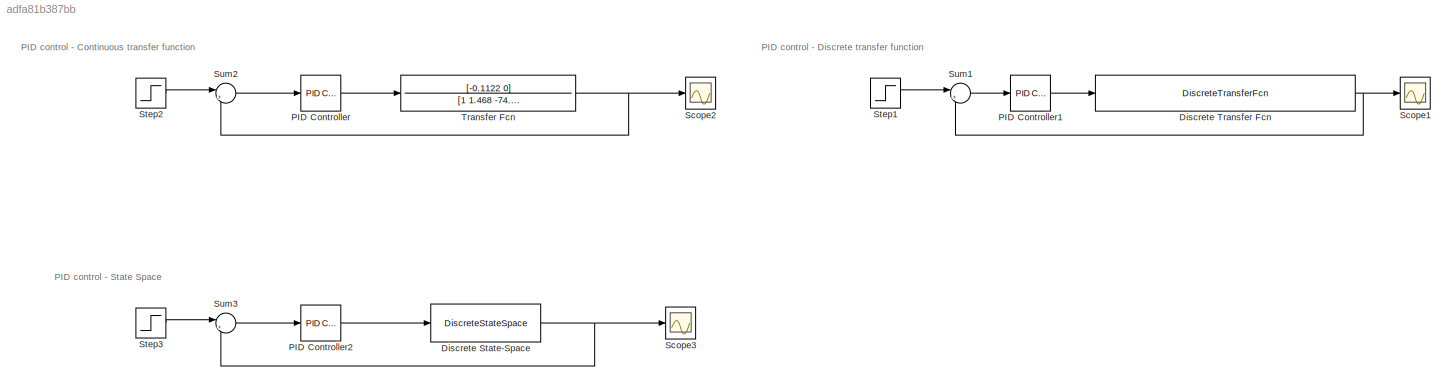
MODEL slx_adfa81b387bb
KIND model
CONFIG AbsTol = auto
CONFIG EnableMultiTasking = off
CONFIG FixedStep = auto
CONFIG MaxStep = auto
CONFIG MinStep = auto
CONFIG RelTol = 1e-3
CONFIG SampleTimeConstraint = Unconstrained
CONFIG SolverName = VariableStepAuto
CONFIG StartTime = 0.0
CONFIG StopTime = 5
BLOCK [DiscreteStateSpace] Discrete State-Space
  A = [0.9891 0.7415 0.6142; 0.009939 1.004 0.003077; 0.00004979 0.01001 1]
  B = [0.009939; 0.00004979; 0.0000001661]
  C = [0 -0.1122 0]
  Commented = on
  D = [0]
  SampleTime = 0.01
BLOCK [DiscreteTransferFcn] Discrete Transfer Fcn
  Denominator = [1 -2.993 2.978 -0.9854]
  InputPortMap = u0
  Numerator = [-0.000005586 0.00000002727 0.000005559]
  SampleTime = 0.01
BLOCK [Reference] PID Controller  REF=slpidlib/PID Controller
  Commented = on
  SourceBlock = slpidlib/PID Controller
  SourceType = PID 1dof
BLOCK [Reference] PID Controller1  REF=slpidlib/PID Controller
  SourceBlock = slpidlib/PID Controller
  SourceType = PID 1dof
BLOCK [Reference] PID Controller2  REF=slpidlib/PID Controller
  Commented = on
  SourceBlock = slpidlib/PID Controller
  SourceType = PID 1dof
BLOCK [Scope] Scope1
  Floating = off
  NumInputPorts = 1
  ScopeSpecificationString = Simulink.scopes.TimeScopeBlockCfg('CurrentConfiguration', extmgr.ConfigurationSet(extmgr.Configuration('Core','General UI',true),extmgr.Configuration('Core','Source UI',true),extmgr.Configuration('Sources','WiredSimulink',true),extmgr.Configuration('Visuals','Time Domain',true,'SerializedDisplays',{struct('MinYLimReal','-2.1148','MaxYLimReal','3.43909','YLabelReal','','MinYLimMag','0.00000','MaxYL...<+1529ch>
BLOCK [Scope] Scope2
  Commented = on
  Floating = off
  NumInputPorts = 1
  ScopeSpecificationString = Simulink.scopes.TimeScopeBlockCfg('CurrentConfiguration', extmgr.ConfigurationSet(extmgr.Configuration('Core','General UI',true),extmgr.Configuration('Core','Source UI',true),extmgr.Configuration('Sources','WiredSimulink',true,'DataLoggingVariableName','ScopeData2'),extmgr.Configuration('Visuals','Time Domain',true,'SerializedDisplays',{struct('MinYLimReal','-0.21695','MaxYLimReal','1.95254','YLab...<+1444ch>
BLOCK [Scope] Scope3
  Commented = on
  Floating = off
  NumInputPorts = 1
  ScopeSpecificationString = Simulink.scopes.TimeScopeBlockCfg('CurrentConfiguration', extmgr.ConfigurationSet(extmgr.Configuration('Core','General UI',true),extmgr.Configuration('Core','Source UI',true),extmgr.Configuration('Sources','WiredSimulink',true,'DataLoggingVariableName','ScopeData1'),extmgr.Configuration('Visuals','Time Domain',true,'SerializedDisplays',{struct('MinYLimReal','-0.21695','MaxYLimReal','1.95254','YLab...<+1481ch>
BLOCK [Step] Step1
  SampleTime = 0.01
  Time = 2
BLOCK [Step] Step2
  Commented = on
  SampleTime = 0.01
  Time = 5
BLOCK [Step] Step3
  Commented = on
  SampleTime = 0.01
  Time = 2
BLOCK [Sum] Sum1
  Inputs = |+-
BLOCK [Sum] Sum2
  Commented = on
  Inputs = |+-
BLOCK [Sum] Sum3
  Commented = on
  Inputs = |+-
BLOCK [TransferFcn] Transfer Fcn
  Commented = on
  Denominator = [1 1.468 -74.3 -61.8]
  Numerator = [-0.1122 0]
ANNOTATION (root): PID control - Continuous transfer function
ANNOTATION (root): PID control - Discrete transfer function
ANNOTATION (root): PID control - State Space
NET Discrete State-Space:1 -> Scope3:1, Sum3:2
NET Discrete Transfer Fcn:1 -> Scope1:1, Sum1:2
LINE PID Controller1:1 -> Discrete Transfer Fcn:1
LINE PID Controller2:1 -> Discrete State-Space:1
LINE PID Controller:1 -> Transfer Fcn:1
LINE Step1:1 -> Sum1:1
LINE Step2:1 -> Sum2:1
LINE Step3:1 -> Sum3:1
LINE Sum1:1 -> PID Controller1:1
LINE Sum2:1 -> PID Controller:1
LINE Sum3:1 -> PID Controller2:1
NET Transfer Fcn:1 -> Scope2:1, Sum2:2
note: NET lines group one-source signal fan-out (src -> all destinations, sorted); 1:1 wires keep LINE
